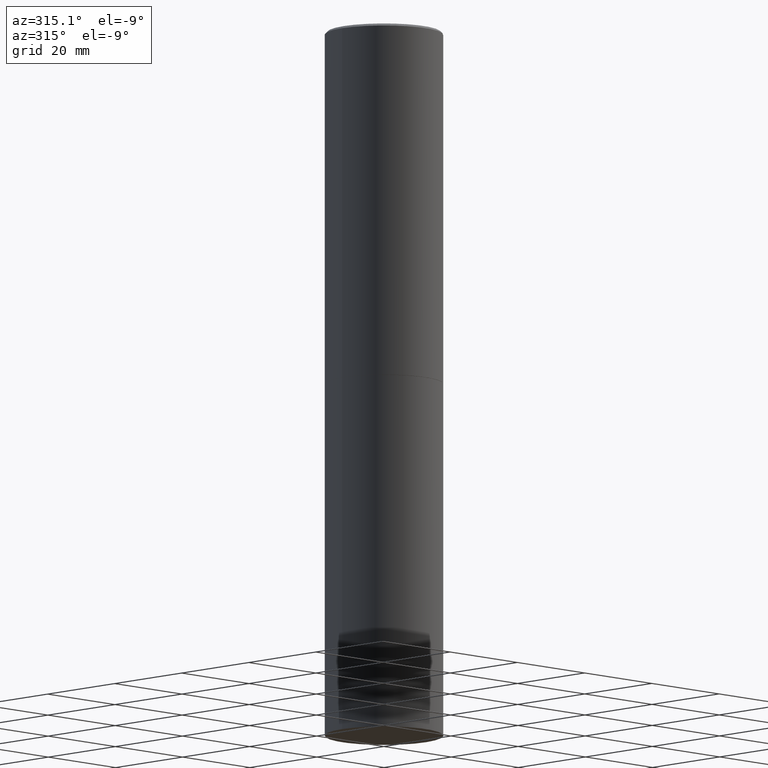
[diagram: clean part render]
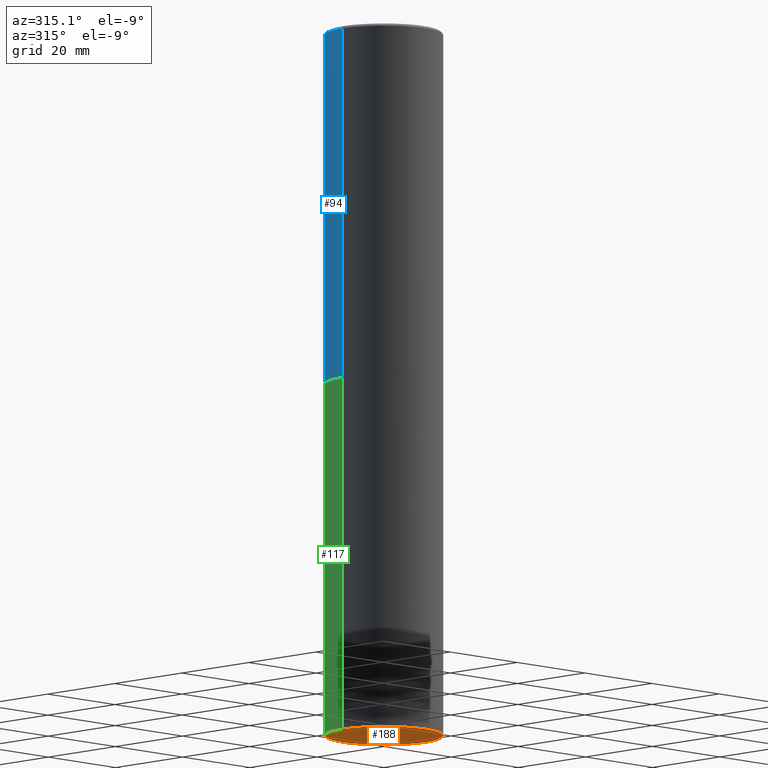
[diagram: same view with three faces highlighted in distinct colors, each labeled with its STEP entity id]
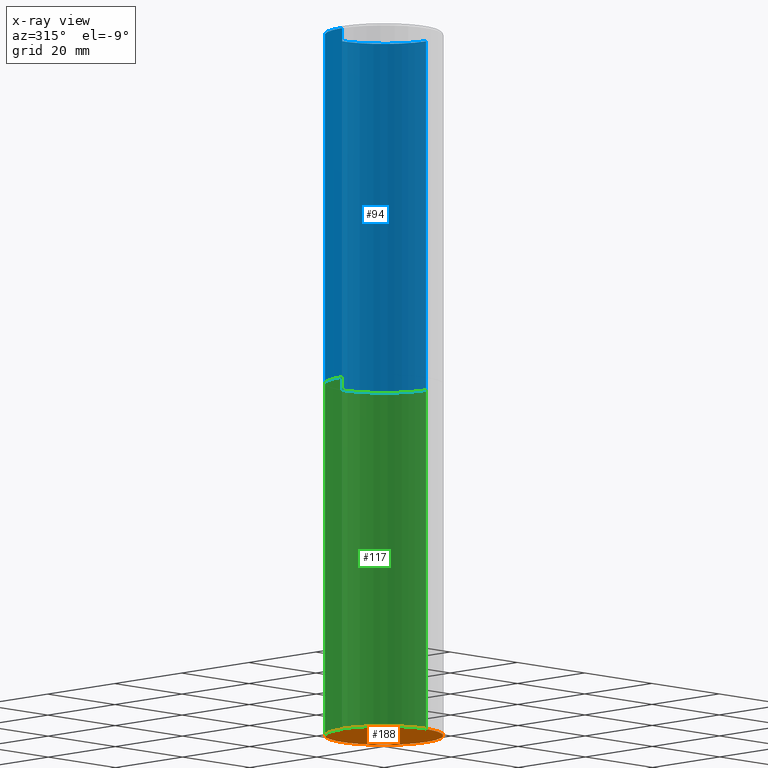
[diagram: x-ray of the same camera — body ghosted, the three highlighted faces saturated]
A machine part, auxiliary view with three faces highlighted in distinct colors.
The next image is the same camera in x-ray (body ghosted, the three faces saturated) — at least one of them is partly hidden behind the body in this view.
Their STEP definitions:

[orange] entity #188 — the highlighted planar face has unit normal (0, -0, -1).
#7 = PLANE ( 'NONE',  #322 ) ;
#55 = DIRECTION ( 'NONE',  ( 1.000000000000000000, -6.982962677686265922E-15, 0.000000000000000000 ) ) ;
#64 = VERTEX_POINT ( 'NONE', #366 ) ;
#70 = ORIENTED_EDGE ( 'NONE', *, *, #333, .F. ) ;
#76 = VERTEX_POINT ( 'NONE', #337 ) ;
#127 = DIRECTION ( 'NONE',  ( 1.000000000000000000, -6.982962677686265922E-15, 0.000000000000000000 ) ) ;
#138 = DIRECTION ( 'NONE',  ( -2.445468806185136597E-29, 3.491481338843145583E-15, 1.000000000000000000 ) ) ;
#141 = DIRECTION ( 'NONE',  ( 2.438088387897960049E-29, -3.491481338843145188E-15, -1.000000000000000000 ) ) ;
#149 = CIRCLE ( 'NONE', #344, 0.4921499999999999764 ) ;
#182 = EDGE_LOOP ( 'NONE', ( #70, #324 ) ) ;
#188 = ADVANCED_FACE ( 'NONE', ( #232 ), #7, .T. ) ;
#220 = CARTESIAN_POINT ( 'NONE',  ( 1.444171603492632270E-28, -2.061894304653819197E-14, -5.905499999999999972 ) ) ;
#232 = FACE_OUTER_BOUND ( 'NONE', #182, .T. ) ;
#236 = EDGE_CURVE ( 'NONE', #64, #76, #240, .T. ) ;
#240 = CIRCLE ( 'NONE', #269, 0.4921499999999999764 ) ;
#269 = AXIS2_PLACEMENT_3D ( 'NONE', #316, #138, #55 ) ;
#316 = CARTESIAN_POINT ( 'NONE',  ( 1.444171603492632270E-28, -2.061894304653819197E-14, -5.905499999999999972 ) ) ;
#322 = AXIS2_PLACEMENT_3D ( 'NONE', #350, #141, #346 ) ;
#324 = ORIENTED_EDGE ( 'NONE', *, *, #236, .F. ) ;
#333 = EDGE_CURVE ( 'NONE', #76, #64, #149, .T. ) ;
#335 = DIRECTION ( 'NONE',  ( -2.445468806185136597E-29, 3.491481338843145583E-15, 1.000000000000000000 ) ) ;
#337 = CARTESIAN_POINT ( 'NONE',  ( 0.4921499999999999764, -2.405560812836148932E-14, -5.905499999999999972 ) ) ;
#344 = AXIS2_PLACEMENT_3D ( 'NONE', #220, #335, #127 ) ;
#346 = DIRECTION ( 'NONE',  ( -1.000000000000000000, 6.982962677686265922E-15, -4.876176775795935793E-29 ) ) ;
#350 = CARTESIAN_POINT ( 'NONE',  ( 3.436665081823440533E-15, 0.4921499999999793262, -5.905500000000001748 ) ) ;
#366 = CARTESIAN_POINT ( 'NONE',  ( -0.4921499999999999764, -1.196718392382684217E-14, -5.905499999999999972 ) ) ;

[blue] entity #94 — the highlighted cylindrical surface (partial cylindrical patch) has radius 12.5006 mm, axis along (-0, 0, 1).
#14 = VERTEX_POINT ( 'NONE', #159 ) ;
#21 = CARTESIAN_POINT ( 'NONE',  ( 0.4921499999999998098, -3.436665081823294593E-15, 2.399810400207968762E-29 ) ) ;
#30 = DIRECTION ( 'NONE',  ( -2.445468806185136597E-29, 3.491481338843145583E-15, 1.000000000000000000 ) ) ;
#31 = VECTOR ( 'NONE', #362, 39.37007874015748143 ) ;
#33 = CARTESIAN_POINT ( 'NONE',  ( -0.4921499999999996988, 3.366835455046430506E-15, -0.02000000000000010797 ) ) ;
#37 = AXIS2_PLACEMENT_3D ( 'NONE', #223, #255, #194 ) ;
#44 = LINE ( 'NONE', #156, #314 ) ;
#88 = EDGE_CURVE ( 'NONE', #352, #14, #157, .T. ) ;
#92 = ORIENTED_EDGE ( 'NONE', *, *, #270, .F. ) ;
#94 = ADVANCED_FACE ( 'NONE', ( #126 ), #252, .T. ) ;
#103 = CARTESIAN_POINT ( 'NONE',  ( 4.890937612370299433E-31, -6.982962677686328587E-17, -0.02000000000000010797 ) ) ;
#109 = CARTESIAN_POINT ( 'NONE',  ( -0.4921499999999999764, -1.690881473276754954E-15, -2.951700000000000212 ) ) ;
#121 = ORIENTED_EDGE ( 'NONE', *, *, #161, .T. ) ;
#123 = AXIS2_PLACEMENT_3D ( 'NONE', #103, #268, #227 ) ;
#126 = FACE_OUTER_BOUND ( 'NONE', #246, .T. ) ;
#136 = DIRECTION ( 'NONE',  ( 1.000000000000000000, -6.982962677686265922E-15, 0.000000000000000000 ) ) ;
#142 = AXIS2_PLACEMENT_3D ( 'NONE', #325, #30, #136 ) ;
#151 = CARTESIAN_POINT ( 'NONE',  ( 0.4921499999999999764, -1.374247054968660936E-14, -2.951700000000000212 ) ) ;
#156 = CARTESIAN_POINT ( 'NONE',  ( -0.4921499999999998098, 3.496936074043331714E-15, -2.420853904668950949E-29 ) ) ;
#157 = LINE ( 'NONE', #21, #31 ) ;
#159 = CARTESIAN_POINT ( 'NONE',  ( 0.4921499999999996988, -3.446223716380120377E-15, -0.02000000000000010797 ) ) ;
#161 = EDGE_CURVE ( 'NONE', #352, #215, #343, .T. ) ;
#162 = DIRECTION ( 'NONE',  ( -2.445468806185136877E-29, 3.491481338843145188E-15, 1.000000000000000000 ) ) ;
#171 = ORIENTED_EDGE ( 'NONE', *, *, #88, .F. ) ;
#194 = DIRECTION ( 'NONE',  ( 1.000000000000000000, -6.982962677686265922E-15, 4.876176775795935793E-29 ) ) ;
#213 = ORIENTED_EDGE ( 'NONE', *, *, #302, .T. ) ;
#215 = VERTEX_POINT ( 'NONE', #109 ) ;
#223 = CARTESIAN_POINT ( 'NONE',  ( 0.000000000000000000, 0.000000000000000000, 0.000000000000000000 ) ) ;
#227 = DIRECTION ( 'NONE',  ( 1.000000000000000000, -6.982962677686265922E-15, 0.000000000000000000 ) ) ;
#246 = EDGE_LOOP ( 'NONE', ( #121, #213, #92, #171 ) ) ;
#252 = CYLINDRICAL_SURFACE ( 'NONE', #37, 0.4921499999999998098 ) ;
#255 = DIRECTION ( 'NONE',  ( -2.445468806185136597E-29, 3.491481338843145583E-15, 1.000000000000000000 ) ) ;
#266 = VERTEX_POINT ( 'NONE', #33 ) ;
#268 = DIRECTION ( 'NONE',  ( -2.445468806185136597E-29, 3.491481338843145583E-15, 1.000000000000000000 ) ) ;
#270 = EDGE_CURVE ( 'NONE', #14, #266, #332, .T. ) ;
#302 = EDGE_CURVE ( 'NONE', #215, #266, #44, .T. ) ;
#314 = VECTOR ( 'NONE', #162, 39.37007874015748143 ) ;
#325 = CARTESIAN_POINT ( 'NONE',  ( 7.218290275216666916E-29, -1.030580546786331359E-14, -2.951700000000000212 ) ) ;
#332 = CIRCLE ( 'NONE', #123, 0.4921499999999996988 ) ;
#343 = CIRCLE ( 'NONE', #142, 0.4921499999999999764 ) ;
#352 = VERTEX_POINT ( 'NONE', #151 ) ;
#362 = DIRECTION ( 'NONE',  ( -2.445468806185136877E-29, 3.491481338843145188E-15, 1.000000000000000000 ) ) ;

[green] entity #117 — the highlighted cylindrical surface (partial cylindrical patch) has radius 12.5006 mm, axis along (-0, 0, 1).
#9 = FACE_OUTER_BOUND ( 'NONE', #18, .T. ) ;
#18 = EDGE_LOOP ( 'NONE', ( #209, #144, #233, #54 ) ) ;
#26 = LINE ( 'NONE', #347, #74 ) ;
#54 = ORIENTED_EDGE ( 'NONE', *, *, #63, .F. ) ;
#62 = CARTESIAN_POINT ( 'NONE',  ( -0.4921499999999999764, -1.196718392382684217E-14, -2.952700000000000102 ) ) ;
#63 = EDGE_CURVE ( 'NONE', #76, #184, #287, .T. ) ;
#64 = VERTEX_POINT ( 'NONE', #366 ) ;
#74 = VECTOR ( 'NONE', #260, 39.37007874015748143 ) ;
#76 = VERTEX_POINT ( 'NONE', #337 ) ;
#111 = DIRECTION ( 'NONE',  ( 1.000000000000000000, -6.982962677686265922E-15, 4.876176775795935793E-29 ) ) ;
#117 = ADVANCED_FACE ( 'NONE', ( #9 ), #133, .T. ) ;
#127 = DIRECTION ( 'NONE',  ( 1.000000000000000000, -6.982962677686265922E-15, 0.000000000000000000 ) ) ;
#129 = EDGE_CURVE ( 'NONE', #184, #217, #195, .T. ) ;
#131 = DIRECTION ( 'NONE',  ( -2.445468806185136597E-29, 3.491481338843145583E-15, 1.000000000000000000 ) ) ;
#133 = CYLINDRICAL_SURFACE ( 'NONE', #293, 0.4921499999999999764 ) ;
#144 = ORIENTED_EDGE ( 'NONE', *, *, #183, .T. ) ;
#149 = CIRCLE ( 'NONE', #344, 0.4921499999999999764 ) ;
#154 = CARTESIAN_POINT ( 'NONE',  ( 0.4921499999999999764, -3.436665081823295777E-15, 2.399810400207969603E-29 ) ) ;
#166 = DIRECTION ( 'NONE',  ( 1.000000000000000000, -6.982962677686265922E-15, 0.000000000000000000 ) ) ;
#176 = DIRECTION ( 'NONE',  ( -2.445468806185136597E-29, 3.491481338843145583E-15, 1.000000000000000000 ) ) ;
#183 = EDGE_CURVE ( 'NONE', #64, #217, #26, .T. ) ;
#184 = VERTEX_POINT ( 'NONE', #239 ) ;
#195 = CIRCLE ( 'NONE', #222, 0.4921499999999999764 ) ;
#199 = CARTESIAN_POINT ( 'NONE',  ( 7.220735744022852519E-29, -1.030929694920215502E-14, -2.952700000000000102 ) ) ;
#209 = ORIENTED_EDGE ( 'NONE', *, *, #333, .T. ) ;
#217 = VERTEX_POINT ( 'NONE', #62 ) ;
#220 = CARTESIAN_POINT ( 'NONE',  ( 1.444171603492632270E-28, -2.061894304653819197E-14, -5.905499999999999972 ) ) ;
#222 = AXIS2_PLACEMENT_3D ( 'NONE', #199, #131, #166 ) ;
#233 = ORIENTED_EDGE ( 'NONE', *, *, #129, .F. ) ;
#239 = CARTESIAN_POINT ( 'NONE',  ( 0.4921499999999999764, -1.374596203102545079E-14, -2.952700000000000102 ) ) ;
#249 = DIRECTION ( 'NONE',  ( -2.445468806185136877E-29, 3.491481338843145188E-15, 1.000000000000000000 ) ) ;
#260 = DIRECTION ( 'NONE',  ( -2.445468806185136877E-29, 3.491481338843145188E-15, 1.000000000000000000 ) ) ;
#287 = LINE ( 'NONE', #154, #313 ) ;
#289 = CARTESIAN_POINT ( 'NONE',  ( 0.000000000000000000, 0.000000000000000000, 0.000000000000000000 ) ) ;
#293 = AXIS2_PLACEMENT_3D ( 'NONE', #289, #176, #111 ) ;
#313 = VECTOR ( 'NONE', #249, 39.37007874015748143 ) ;
#333 = EDGE_CURVE ( 'NONE', #76, #64, #149, .T. ) ;
#335 = DIRECTION ( 'NONE',  ( -2.445468806185136597E-29, 3.491481338843145583E-15, 1.000000000000000000 ) ) ;
#337 = CARTESIAN_POINT ( 'NONE',  ( 0.4921499999999999764, -2.405560812836148932E-14, -5.905499999999999972 ) ) ;
#344 = AXIS2_PLACEMENT_3D ( 'NONE', #220, #335, #127 ) ;
#347 = CARTESIAN_POINT ( 'NONE',  ( -0.4921499999999999764, 3.496936074043332897E-15, -2.420853904668951509E-29 ) ) ;
#366 = CARTESIAN_POINT ( 'NONE',  ( -0.4921499999999999764, -1.196718392382684217E-14, -5.905499999999999972 ) ) ;